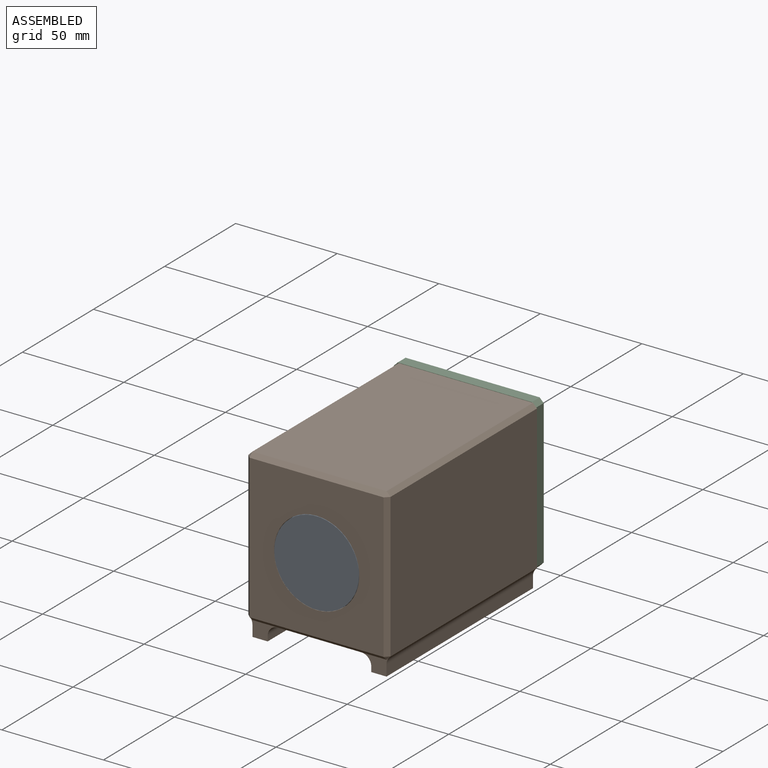
[diagram: assembled view]
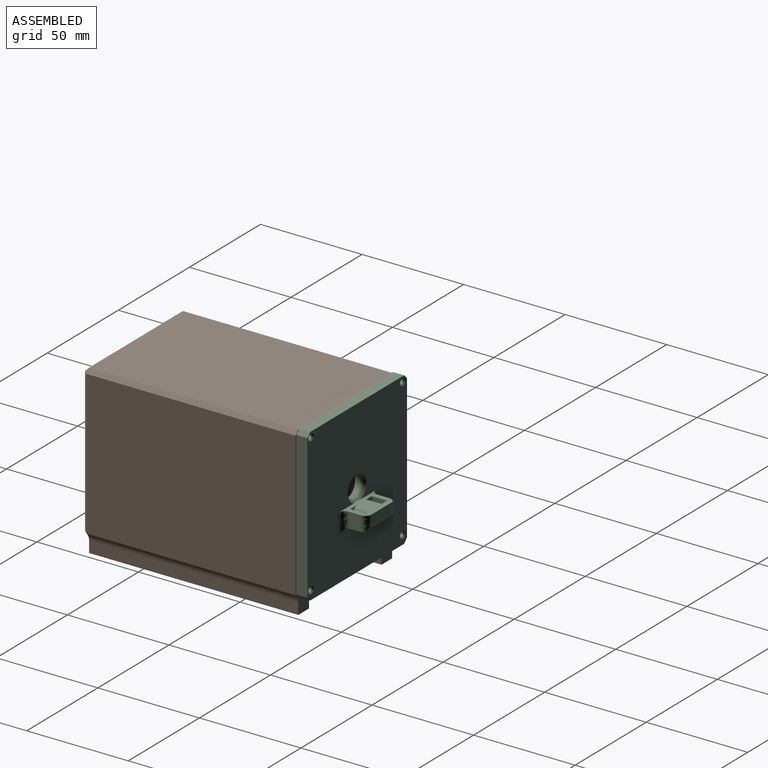
[diagram: assembled view, second angle]
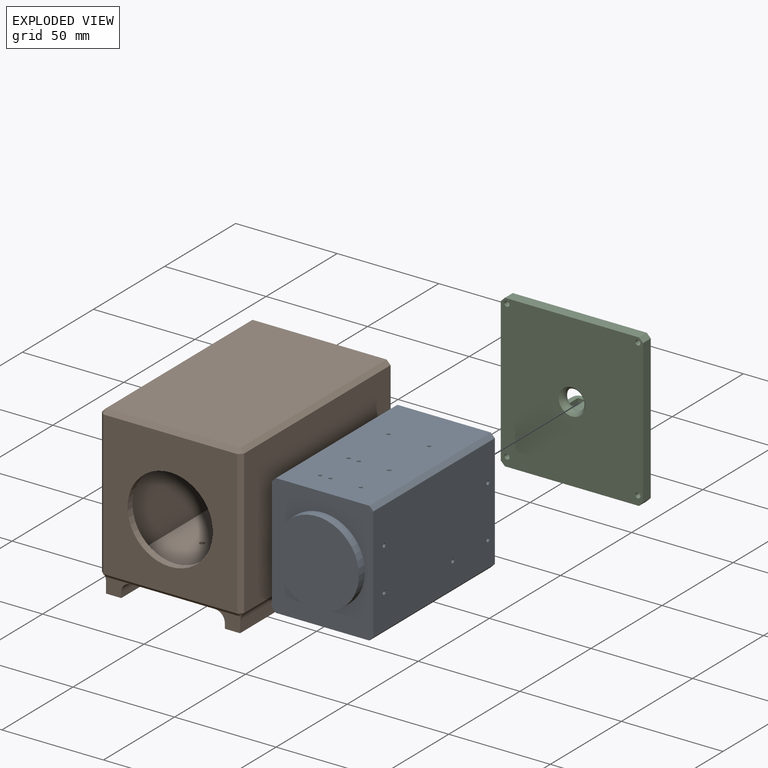
[diagram: exploded view]
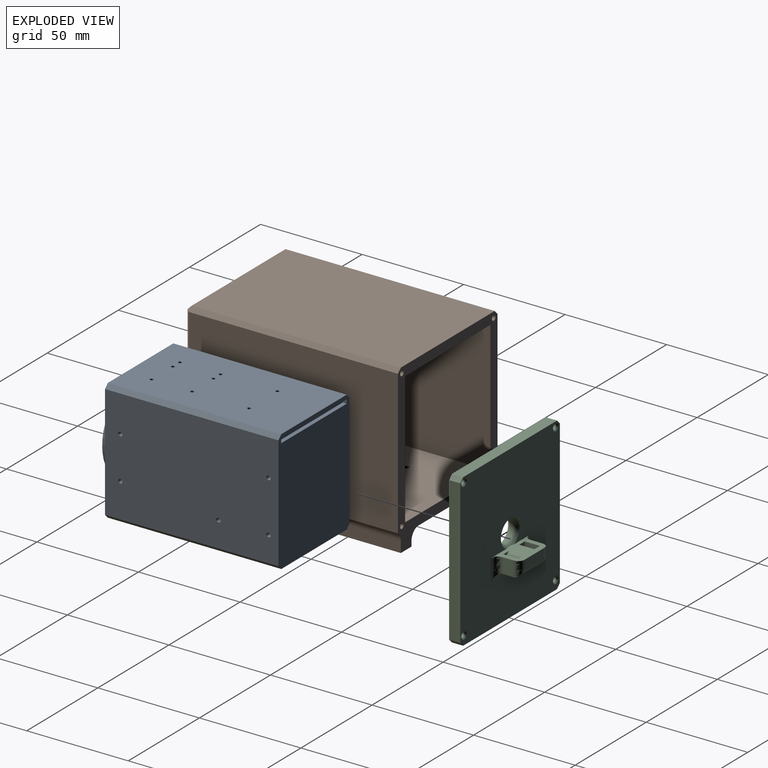
[diagram: exploded view, second angle]
ASSEMBLY  parts=3 mates=3
PART A: 86 faces, bbox 50x89.7x60 mm
  f0: plane 85.4x56mm, normal (-1,0,0), area 4775.8mm2, adj f4,f5,f63,f66,f83,f84
  f1: plane 85.4x46mm, normal (0,0,-1), area 3902mm2, adj f4,f5,f39,f42,f45,f48,f51,f54
  f2: plane 85.4x56mm, normal (1,0,0), area 4765.9mm2, adj f4,f5,f69,f72,f75,f78,f81,f82
  f3: plane 85.4x46mm, normal (0,0,1), area 3902mm2, adj f4,f5,f15,f18,f21,f24,f27,f30
  f4: plane 60x50mm, normal (0,-1,0), area 1626.3mm2, adj f0,f1,f2,f3,f6,f82,f83,f84
  f5: plane 60x50mm, normal (0,1,0), area 2900mm2, adj f0,f1,f2,f3,f8,f9,f10,f11
  f6: cylinder r=20.85mm len=41.7mm, axis (0,1,0), area 563.3mm2, adj f4,f7
  f7: plane 41.7x41.7mm, normal (0,-1,0), area 1365.7mm2, adj f6
  f8: plane 2x2mm, normal (-1,0,0), area 4mm2, adj f5,f9,f11,f12
  f9: plane 46x2mm, normal (0,0,-1), area 92mm2, adj f5,f8,f10,f12
  f10: plane 2x2mm, normal (1,0,0), area 4mm2, adj f5,f9,f11,f12
  f11: plane 46x2mm, normal (0,0,1), area 92mm2, adj f5,f8,f10,f12
  f12: plane 46x2mm, normal (0,1,0), area 92mm2, adj f8,f9,f10,f11
  f13: cone r=0.8mm half-angle=59deg, axis (0,0,1), area 2.3mm2, adj f14
  f14: cylinder r=0.8mm len=2.78mm, axis (0,0,1), area 13.9mm2, adj f13,f15
  f15: cone r=1.03mm half-angle=45deg, axis (0,0,1), area 1.8mm2, adj f3,f14
  f16: cone r=0.8mm half-angle=59deg, axis (0,0,1), area 2.3mm2, adj f17
  f17: cylinder r=0.8mm len=2.78mm, axis (0,0,1), area 13.9mm2, adj f16,f18
  f18: cone r=1.03mm half-angle=45deg, axis (0,0,1), area 1.8mm2, adj f3,f17
  f19: cone r=0.8mm half-angle=59deg, axis (0,0,1), area 2.3mm2, adj f20
  f20: cylinder r=0.8mm len=2.78mm, axis (0,0,1), area 13.9mm2, adj f19,f21
  f21: cone r=1.03mm half-angle=45deg, axis (0,0,1), area 1.8mm2, adj f3,f20
  f22: cone r=0.8mm half-angle=59deg, axis (0,0,1), area 2.3mm2, adj f23
  f23: cylinder r=0.8mm len=2.78mm, axis (0,0,1), area 13.9mm2, adj f22,f24
  f24: cone r=1.03mm half-angle=45deg, axis (0,0,1), area 1.8mm2, adj f3,f23
  f25: cone r=0.8mm half-angle=59deg, axis (0,0,1), area 2.3mm2, adj f26
  f26: cylinder r=0.8mm len=2.78mm, axis (0,0,1), area 13.9mm2, adj f25,f27
  f27: cone r=1.03mm half-angle=45deg, axis (0,0,1), area 1.8mm2, adj f3,f26
  f28: cone r=0.8mm half-angle=59deg, axis (0,0,1), area 2.3mm2, adj f29
  f29: cylinder r=0.8mm len=2.78mm, axis (0,0,1), area 13.9mm2, adj f28,f30
  f30: cone r=1.03mm half-angle=45deg, axis (0,0,1), area 1.8mm2, adj f3,f29
  f31: cone r=0.8mm half-angle=59deg, axis (0,0,1), area 2.3mm2, adj f32
  f32: cylinder r=0.8mm len=2.78mm, axis (0,0,1), area 13.9mm2, adj f31,f33
  f33: cone r=1.03mm half-angle=45deg, axis (0,0,1), area 1.8mm2, adj f3,f32
  f34: cone r=0.8mm half-angle=59deg, axis (0,0,1), area 2.3mm2, adj f35
  f35: cylinder r=0.8mm len=2.78mm, axis (0,0,1), area 13.9mm2, adj f34,f36
  f36: cone r=1.03mm half-angle=45deg, axis (0,0,1), area 1.8mm2, adj f3,f35
  f37: cone r=0.8mm half-angle=59deg, axis (0,0,-1), area 2.3mm2, adj f38
  f38: cylinder r=0.8mm len=2.78mm, axis (0,0,-1), area 13.9mm2, adj f37,f39
  f39: cone r=1.03mm half-angle=45deg, axis (0,0,-1), area 1.8mm2, adj f1,f38
  f40: cone r=0.8mm half-angle=59deg, axis (0,0,-1), area 2.3mm2, adj f41
  f41: cylinder r=0.8mm len=2.78mm, axis (0,0,-1), area 13.9mm2, adj f40,f42
  f42: cone r=1.03mm half-angle=45deg, axis (0,0,-1), area 1.8mm2, adj f1,f41
  f43: cone r=0.8mm half-angle=59deg, axis (0,0,-1), area 2.3mm2, adj f44
  f44: cylinder r=0.8mm len=2.78mm, axis (0,0,-1), area 13.9mm2, adj f43,f45
  f45: cone r=1.03mm half-angle=45deg, axis (0,0,-1), area 1.8mm2, adj f1,f44
  f46: cone r=0.8mm half-angle=59deg, axis (0,0,-1), area 2.3mm2, adj f47
  f47: cylinder r=0.8mm len=2.78mm, axis (0,0,-1), area 13.9mm2, adj f46,f48
  f48: cone r=1.03mm half-angle=45deg, axis (0,0,-1), area 1.8mm2, adj f1,f47
  f49: cone r=0.8mm half-angle=59deg, axis (0,0,-1), area 2.3mm2, adj f50
  f50: cylinder r=0.8mm len=2.78mm, axis (0,0,-1), area 13.9mm2, adj f49,f51
  f51: cone r=1.03mm half-angle=45deg, axis (0,0,-1), area 1.8mm2, adj f1,f50
  f52: cone r=0.8mm half-angle=59deg, axis (0,0,-1), area 2.3mm2, adj f53
  f53: cylinder r=0.8mm len=2.78mm, axis (0,0,-1), area 13.9mm2, adj f52,f54
  f54: cone r=1.03mm half-angle=45deg, axis (0,0,-1), area 1.8mm2, adj f1,f53
  f55: cone r=0.8mm half-angle=59deg, axis (0,0,-1), area 2.3mm2, adj f56
  f56: cylinder r=0.8mm len=2.78mm, axis (0,0,-1), area 13.9mm2, adj f55,f57
  f57: cone r=1.03mm half-angle=45deg, axis (0,0,-1), area 1.8mm2, adj f1,f56
  f58: cone r=0.8mm half-angle=59deg, axis (0,0,-1), area 2.3mm2, adj f59
  f59: cylinder r=0.8mm len=2.78mm, axis (0,0,-1), area 13.9mm2, adj f58,f60
  f60: cone r=1.03mm half-angle=45deg, axis (0,0,-1), area 1.8mm2, adj f1,f59
  f61: cone r=0.8mm half-angle=59deg, axis (-1,0,0), area 2.3mm2, adj f62
  f62: cylinder r=0.8mm len=2.78mm, axis (-1,0,0), area 13.9mm2, adj f61,f63
  f63: cone r=1.03mm half-angle=45deg, axis (-1,0,0), area 1.8mm2, adj f0,f62
  f64: cone r=0.8mm half-angle=59deg, axis (-1,0,0), area 2.3mm2, adj f65
  f65: cylinder r=0.8mm len=2.78mm, axis (-1,0,0), area 13.9mm2, adj f64,f66
  f66: cone r=1.03mm half-angle=45deg, axis (-1,0,0), area 1.8mm2, adj f0,f65
  f67: cone r=0.8mm half-angle=59deg, axis (1,0,0), area 2.3mm2, adj f68
  f68: cylinder r=0.8mm len=2.78mm, axis (1,0,0), area 13.9mm2, adj f67,f69
  f69: cone r=1.03mm half-angle=45deg, axis (1,0,0), area 1.8mm2, adj f2,f68
  f70: cone r=0.8mm half-angle=59deg, axis (1,0,0), area 2.3mm2, adj f71
  f71: cylinder r=0.8mm len=2.78mm, axis (1,0,0), area 13.9mm2, adj f70,f72
  f72: cone r=1.03mm half-angle=45deg, axis (1,0,0), area 1.8mm2, adj f2,f71
  f73: cone r=0.8mm half-angle=59deg, axis (1,0,0), area 2.3mm2, adj f74
  f74: cylinder r=0.8mm len=2.78mm, axis (1,0,0), area 13.9mm2, adj f73,f75
  f75: cone r=1.03mm half-angle=45deg, axis (1,0,0), area 1.8mm2, adj f2,f74
  f76: cone r=0.8mm half-angle=59deg, axis (1,0,0), area 2.3mm2, adj f77
  f77: cylinder r=0.8mm len=2.78mm, axis (1,0,0), area 13.9mm2, adj f76,f78
  f78: cone r=1.03mm half-angle=45deg, axis (1,0,0), area 1.8mm2, adj f2,f77
  f79: cone r=0.8mm half-angle=59deg, axis (1,0,0), area 2.3mm2, adj f80
  f80: cylinder r=0.8mm len=2.78mm, axis (1,0,0), area 13.9mm2, adj f79,f81
  f81: cone r=1.03mm half-angle=45deg, axis (1,0,0), area 1.8mm2, adj f2,f80
  f82: plane 85.4x2mm, normal (0.71,0,-0.71), area 241.5mm2, adj f1,f2,f4,f5
  f83: plane 85.4x2mm, normal (-0.71,0,-0.71), area 241.5mm2, adj f0,f1,f4,f5
  f84: plane 85.4x2mm, normal (-0.71,0,0.71), area 241.5mm2, adj f0,f3,f4,f5
  f85: plane 85.4x2mm, normal (0.71,0,0.71), area 241.5mm2, adj f2,f3,f4,f5
PART B: 53 faces, bbox 70x105x82.5 mm
  f0: plane 103x41mm, normal (0,0,-1), area 4180mm2, adj f1,f13,f15,f17,f19,f29,f41,f42
  f1: plane 82.5x70mm, normal (0,1,0), area 1446.7mm2, adj f0,f2,f3,f4,f6,f7,f8,f9
  f2: plane 103x66mm, normal (0,0,1), area 6798mm2, adj f1,f20,f22,f23
  f3: plane 103x71mm, normal (-1,0,0), area 7313mm2, adj f1,f22,f28,f31
  f4: plane 103x71mm, normal (1,0,0), area 7313mm2, adj f1,f20,f24,f25
  f5: plane 71x66mm, normal (0,-1,0), area 3300.6mm2, adj f11,f23,f24,f28,f29
  f6: plane 100x60mm, normal (0,0,-1), area 6000mm2, adj f1,f7,f9,f10
  f7: plane 100x65mm, normal (1,0,0), area 6500mm2, adj f1,f6,f8,f10
  f8: plane 100x60mm, normal (0,0,1), area 5980.4mm2, adj f1,f7,f9,f10,f12,f14,f16,f18
  f9: plane 100x65mm, normal (-1,0,0), area 6500mm2, adj f1,f6,f8,f10
  f10: plane 65x60mm, normal (0,1,0), area 2309.6mm2, adj f6,f7,f8,f9,f32
  f11: cylinder r=21mm len=42mm, axis (0,-1,0), area 461.8mm2, adj f5,f32
  f12: cylinder r=1.25mm len=4.4mm, axis (0,0,-1), area 34.6mm2, adj f8,f13
  f13: cone r=1.25mm half-angle=45deg, axis (0,0,-1), area 8.3mm2, adj f0,f12
  f14: cylinder r=1.25mm len=4.4mm, axis (0,0,-1), area 34.6mm2, adj f8,f15
  f15: cone r=1.25mm half-angle=45deg, axis (0,0,-1), area 8.3mm2, adj f0,f14
  f16: cylinder r=1.25mm len=4.4mm, axis (0,0,-1), area 34.6mm2, adj f8,f17
  f17: cone r=1.25mm half-angle=45deg, axis (0,0,-1), area 8.3mm2, adj f0,f16
  f18: cylinder r=1.25mm len=4.4mm, axis (0,0,-1), area 34.6mm2, adj f8,f19
  f19: cone r=1.25mm half-angle=45deg, axis (0,0,-1), area 8.3mm2, adj f0,f18
  f20: plane 103x2mm, normal (0.71,0,0.71), area 291.3mm2, adj f1,f2,f4,f21
  f21: plane 2x2mm, normal (0.58,-0.58,0.58), area 3.5mm2, adj f20,f23,f24
  f22: plane 103x2mm, normal (-0.71,0,0.71), area 291.3mm2, adj f1,f2,f3,f26
  f23: plane 66x2mm, normal (0,-0.71,0.71), area 186.7mm2, adj f2,f5,f21,f26
  f24: plane 71x2mm, normal (0.71,-0.71,0), area 200.8mm2, adj f4,f5,f21,f27
  f25: plane 103x0.54mm, normal (0.71,0,-0.71), area 78mm2, adj f1,f4,f27,f44
  f26: plane 2x2mm, normal (-0.58,-0.58,0.58), area 3.5mm2, adj f22,f23,f28
  f27: plane 2x2mm, normal (0.58,-0.58,-0.58), area 3.5mm2, adj f24,f25,f29,f37
  f28: plane 71x2mm, normal (-0.71,-0.71,0), area 200.8mm2, adj f3,f5,f26,f30
  f29: plane 66x2mm, normal (0,-0.71,-0.71), area 186.7mm2, adj f0,f5,f27,f30,f34,f37
  f30: plane 2x2mm, normal (-0.58,-0.58,-0.58), area 3.5mm2, adj f28,f29,f31,f34
  f31: plane 103x0.54mm, normal (-0.71,0,-0.71), area 78mm2, adj f1,f3,f30,f43
  f32: cone r=22.5mm half-angle=45deg, axis (0,1,0), area 289.9mm2, adj f10,f11
  f33: plane 103x2.5mm, normal (1,0,0), area 257.5mm2, adj f1,f34,f36,f42
  f34: plane 13.96x8.96mm, normal (0,-1,0), area 62.2mm2, adj f29,f30,f33,f35,f36,f42,f43
  f35: plane 103x5.43mm, normal (-1,0,0), area 559.2mm2, adj f1,f34,f36,f43
  f36: plane 103x7.5mm, normal (0,0,-1), area 772.5mm2, adj f1,f33,f34,f35
  f37: plane 13.96x8.96mm, normal (0,-1,0), area 62.2mm2, adj f27,f29,f38,f39,f40,f41,f44
  f38: plane 103x2.5mm, normal (-1,0,0), area 257.5mm2, adj f1,f37,f40,f41
  f39: plane 103x5.43mm, normal (1,0,0), area 559.2mm2, adj f1,f37,f40,f44
  f40: plane 103x7.5mm, normal (0,0,-1), area 772.5mm2, adj f1,f37,f38,f39
  f41: cylinder r=5mm len=103mm, axis (0,1,0), area 809mm2, adj f0,f1,f37,f38
  f42: cylinder r=5mm len=103mm, axis (0,-1,0), area 809mm2, adj f0,f1,f33,f34
  f43: cylinder r=5mm len=103mm, axis (0,-1,0), area 404.5mm2, adj f1,f31,f34,f35
  f44: cylinder r=5mm len=103mm, axis (0,-1,0), area 404.5mm2, adj f1,f25,f37,f39
  f45: cone r=0mm half-angle=59deg, axis (0,1,0), area 5.7mm2, adj f46
  f46: cylinder r=1.25mm len=15mm, axis (0,1,0), area 117.8mm2, adj f1,f45
  f47: cone r=0mm half-angle=59deg, axis (0,1,0), area 5.7mm2, adj f48
  f48: cylinder r=1.25mm len=15mm, axis (0,1,0), area 117.8mm2, adj f1,f47
  f49: cone r=0mm half-angle=59deg, axis (0,1,0), area 5.7mm2, adj f50
  f50: cylinder r=1.25mm len=15mm, axis (0,1,0), area 117.8mm2, adj f1,f49
  f51: cone r=0mm half-angle=59deg, axis (0,1,0), area 5.7mm2, adj f52
  f52: cylinder r=1.25mm len=15mm, axis (0,1,0), area 117.8mm2, adj f1,f51
PART C: 50 faces, bbox 70.2x75.2x17.7 mm
  f0: plane 27x12.48mm, normal (0,1,0), area 173.6mm2, adj f10,f16,f18,f19,f20,f21,f22,f23
  f1: plane 4.97x2.5mm, normal (0,-1,0), area 12.4mm2, adj f3,f4,f18,f29
  f2: plane 4.97x3.5mm, normal (0,-1,0), area 17.4mm2, adj f3,f4,f32,f36
  f3: bspline ~28.8x3.5mm, area 109.4mm2, adj f1,f2,f10,f17,f20,f21,f24,f26
  f4: bspline ~22x3.5mm, area 89.2mm2, adj f1,f2,f16,f17,f22,f23,f26,f27
  f5: plane 66x5.5mm, normal (0,1,0), area 363mm2, adj f10,f11,f12,f15
  f6: plane 71x5.5mm, normal (-1,0,0), area 390.5mm2, adj f10,f11,f14,f15
  f7: plane 66x5.5mm, normal (0,-1,0), area 363mm2, adj f10,f11,f13,f14
  f8: cylinder r=5mm len=10mm, axis (0,0,-1), area 13.5mm2, adj f48,f49
  f9: plane 71x5.5mm, normal (1,0,0), area 390.5mm2, adj f10,f11,f12,f13
  f10: plane 75x70mm, normal (0,0,1), area 4770.9mm2, adj f0,f3,f5,f6,f7,f9,f12,f13
  f11: plane 75x70mm, normal (0,0,-1), area 5089.6mm2, adj f5,f6,f7,f9,f12,f13,f14,f15
  f12: plane 5.5x2mm, normal (0.71,0.71,0), area 15.6mm2, adj f5,f9,f10,f11
  f13: plane 5.5x2mm, normal (0.71,-0.71,0), area 15.6mm2, adj f7,f9,f10,f11
  f14: plane 5.5x2mm, normal (-0.71,-0.71,0), area 15.6mm2, adj f6,f7,f10,f11
  f15: plane 5.5x2mm, normal (-0.71,0.71,0), area 15.6mm2, adj f5,f6,f10,f11
  f16: plane 13x4mm, normal (0,0,1), area 52mm2, adj f0,f4,f22,f23
  f17: plane 4.97x2.5mm, normal (0,-1,0), area 12.4mm2, adj f3,f4,f19,f26
  f18: plane 7.5x4.97mm, normal (1,0,0), area 37.3mm2, adj f0,f1,f20,f22
  f19: plane 7.5x4.97mm, normal (-1,0,0), area 37.3mm2, adj f0,f17,f21,f23
  f20: bspline ~12.1x3.5mm, area 52.6mm2, adj f0,f3,f10,f18
  f21: bspline ~12.1x3.5mm, area 52.6mm2, adj f0,f3,f10,f19
  f22: bspline ~8.25x3.5mm, area 32.7mm2, adj f0,f4,f16,f18
  f23: bspline ~8.25x3.5mm, area 32.7mm2, adj f0,f4,f16,f19
  f24: plane 7.94x7.22mm, normal (0,0,1), area 22.3mm2, adj f0,f3,f25,f26,f34,f37
  f25: plane 1.53x0.11mm, normal (-1,0,0), area 0.1mm2, adj f24,f34,f37
  f26: plane 7.81x7.59mm, normal (1,0,0), area 56.3mm2, adj f0,f3,f4,f17,f24,f27
  f27: plane 7.42x6.09mm, normal (0,0,-1), area 21.2mm2, adj f0,f4,f26,f34,f36
  f28: plane 7.88x4.66mm, normal (0,0,1), area 18.2mm2, adj f0,f3,f29,f30,f33,f35
  f29: plane 7.81x7.59mm, normal (-1,0,0), area 56.3mm2, adj f0,f1,f3,f4,f28,f31
  f30: plane 7.5x2.64mm, normal (1,0,0), area 18.8mm2, adj f28,f31,f32,f33,f35
  f31: plane 7.42x4.5mm, normal (0,0,-1), area 17.3mm2, adj f0,f4,f29,f30,f32,f35
  f32: cylinder r=2.5mm len=5.97mm, axis (0,0,1), area 23.1mm2, adj f2,f4,f30,f31,f33
  f33: bspline ~4.24x2.79mm, area 5.9mm2, adj f3,f28,f30,f32
  f34: cylinder r=2.5mm len=7.5mm, axis (0,0,-1), area 29.5mm2, adj f0,f24,f25,f27,f36
  f35: cylinder r=2.5mm len=7.5mm, axis (0,0,1), area 29.5mm2, adj f0,f28,f30,f31
  f36: cylinder r=5mm len=5.97mm, axis (0,0,-1), area 46.5mm2, adj f2,f4,f27,f34,f37
  f37: bspline ~5.49x5.2mm, area 12.1mm2, adj f3,f24,f25,f36
  f38: cylinder r=1.25mm len=4.9mm, axis (0,0,1), area 38.5mm2, adj f11,f39
  f39: cone r=1.25mm half-angle=45deg, axis (0,0,1), area 8.3mm2, adj f10,f38
  f40: cylinder r=1.25mm len=4.9mm, axis (0,0,1), area 38.5mm2, adj f11,f41
  f41: cone r=1.25mm half-angle=45deg, axis (0,0,1), area 8.3mm2, adj f10,f40
  f42: cylinder r=1.25mm len=4.9mm, axis (0,0,1), area 38.5mm2, adj f11,f43
  f43: cone r=1.25mm half-angle=45deg, axis (0,0,1), area 8.3mm2, adj f10,f42
  f44: cylinder r=1.25mm len=4.9mm, axis (0,0,1), area 38.5mm2, adj f11,f45
  f45: cone r=1.25mm half-angle=45deg, axis (0,0,1), area 8.3mm2, adj f10,f44
  f46: cone r=6.5mm half-angle=45deg, axis (0,0,-1), area 41.7mm2, adj f11,f48
  f47: cone r=5mm half-angle=45deg, axis (0,0,1), area 39.3mm2, adj f0,f10,f49
  f48: torus R=7.5mm, axis (0,0,1), area 64.8mm2, adj f8,f46
  f49: torus R=7.5mm, axis (0,0,-1), area 64.8mm2, adj f8,f47
PLACE A t=(-32.08,63.98,14.92)mm
PLACE B rot(axis=(-0.94,-0.13,0.33),0deg) t=(-32.08,-25.66,17.42)mm
PLACE C rot(axis=(0,-0.71,-0.71),180deg) t=(-32.64,79.34,17.59)mm
MATE planar A.f1 <-> B.f8  axis (0,0,-1) through (-32.08,21.22,-15.08)mm
MATE planar C.f8 <-> B.f1  axis (0,-1,0) through (-32.64,79.34,17.59)mm
MATE slider A.f6 <-> B.f11  axis (0,-1,0) through (-32.08,-25.72,14.92)mm
